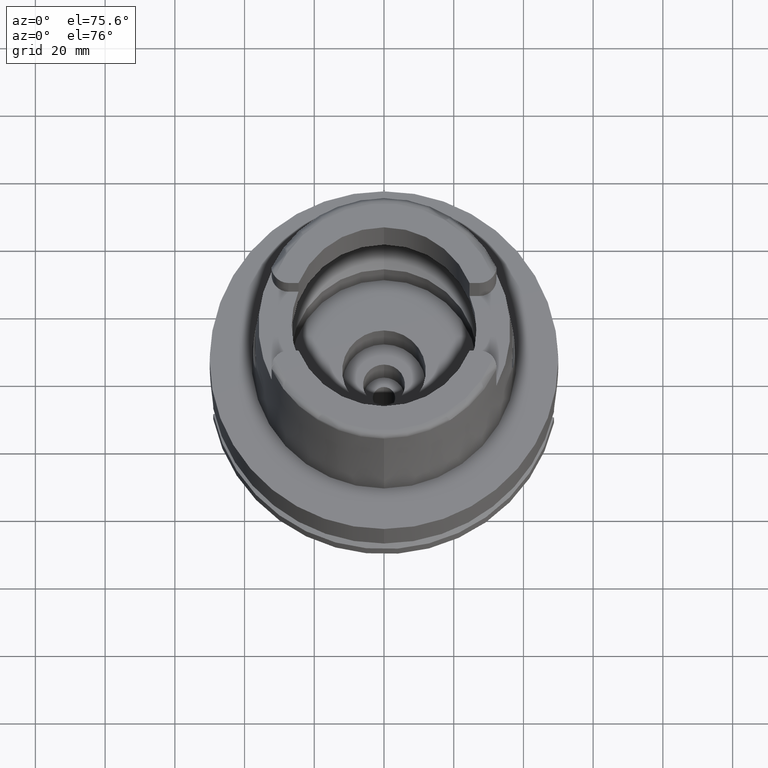
[diagram: clean part render]
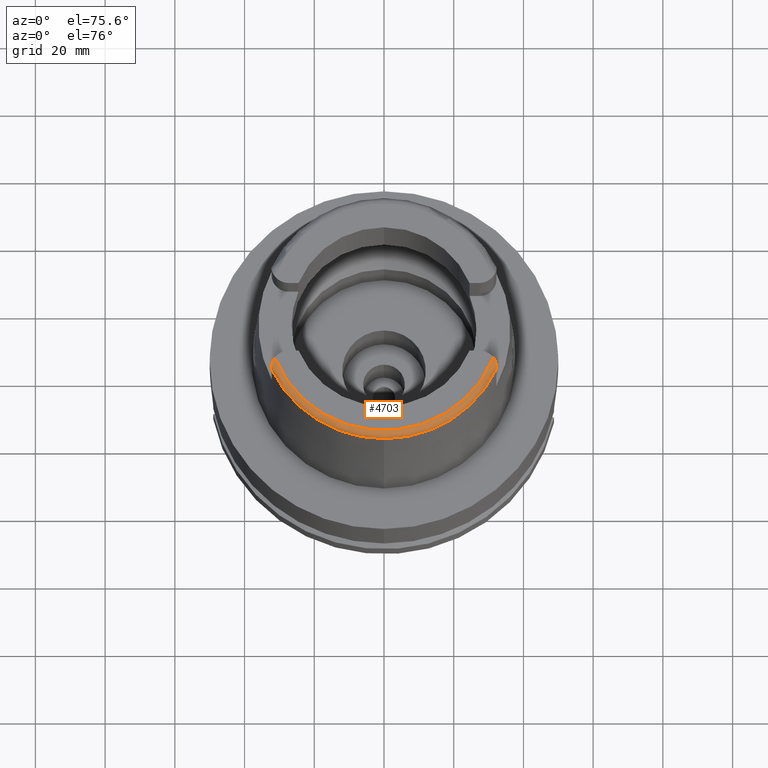
[diagram: same view with one face highlighted and labeled with its STEP entity id]
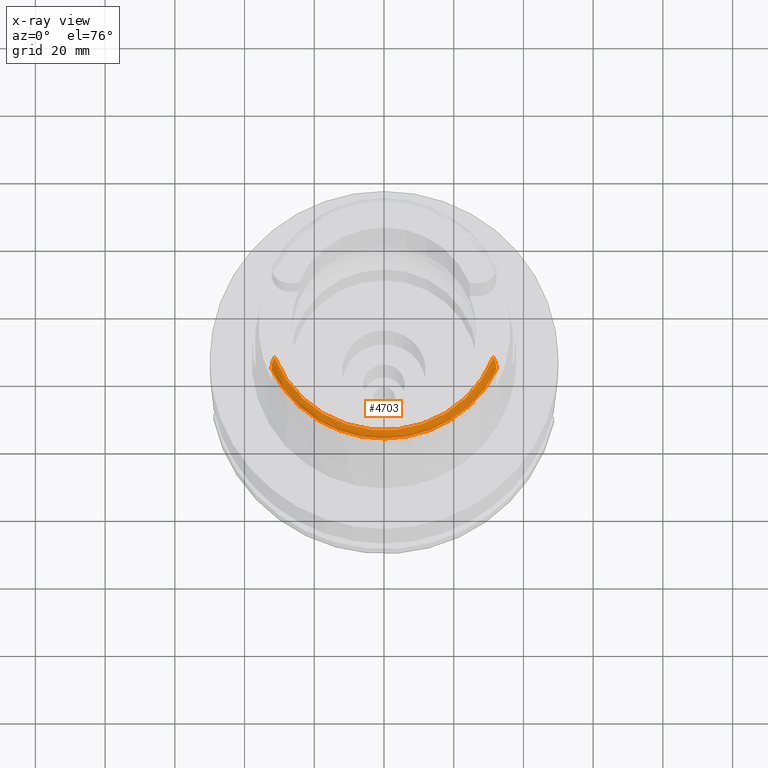
[diagram: x-ray of the same camera — body ghosted, the highlighted face saturated]
A machine part, auxiliary view. The second image highlights one B-rep face of the part: STEP entity #4703.
The next image is the same camera in x-ray: the body ghosted, the highlighted face saturated — about 0% of this face is hidden behind the body in this view.
In plain terms, the highlighted toroidal blend (fillet) surface has major radius 33.5974 mm and minor (blend) radius 2 mm.
Its self-contained STEP definition (entity closure, byte-faithful):
#1 = CARTESIAN_POINT ( 'NONE',  ( -32.12229372940815608, -13.78078003851861588, 49.47012209230408786 ) ) ;
#60 = FACE_OUTER_BOUND ( 'NONE', #5137, .T. ) ;
#74 = CARTESIAN_POINT ( 'NONE',  ( 32.12662134838760153, -13.79952790614440694, 49.45946179748153071 ) ) ;
#117 = CARTESIAN_POINT ( 'NONE',  ( 32.19202011022861853, -14.13997669753728736, 49.24765799081669115 ) ) ;
#121 = ORIENTED_EDGE ( 'NONE', *, *, #161, .F. ) ;
#161 = EDGE_CURVE ( 'NONE', #3127, #2185, #4436, .T. ) ;
#198 = ORIENTED_EDGE ( 'NONE', *, *, #4553, .T. ) ;
#277 = CARTESIAN_POINT ( 'NONE',  ( 31.81684389418833092, -12.87993412136331095, 49.86304614017475956 ) ) ;
#365 = CARTESIAN_POINT ( 'NONE',  ( -32.09774929076863259, -13.67837631100131190, 49.52678221084136112 ) ) ;
#397 = VERTEX_POINT ( 'NONE', #3364 ) ;
#426 = CARTESIAN_POINT ( 'NONE',  ( -31.99727887741356369, -13.33980551114417956, 49.69020498815900311 ) ) ;
#452 = CARTESIAN_POINT ( 'NONE',  ( -32.00287766866619421, -13.35663665331748007, 49.68277174821817965 ) ) ;
#465 = CARTESIAN_POINT ( 'NONE',  ( 32.23208204946383404, -14.47207941814640186, 48.99570727851353524 ) ) ;
#478 = CARTESIAN_POINT ( 'NONE',  ( -31.68001655363202573, -12.57912712960965251, 49.95538788637795591 ) ) ;
#491 = CARTESIAN_POINT ( 'NONE',  ( 32.19280754935339672, -14.14505097819888491, 49.24419245262112810 ) ) ;
#518 = CARTESIAN_POINT ( 'NONE',  ( 32.00551299379910120, -13.36472527706428792, 49.67927593232261074 ) ) ;
#541 = CARTESIAN_POINT ( 'NONE',  ( 32.18535771742216411, -14.09728687932735269, 49.27674078398031554 ) ) ;
#743 = CARTESIAN_POINT ( 'NONE',  ( 0.0000000000000000000, 0.0000000000000000000, 48.09987853799000135 ) ) ;
#810 = CARTESIAN_POINT ( 'NONE',  ( -32.06965892551971820, -13.57192951026770267, 49.58228171760884351 ) ) ;
#851 = CARTESIAN_POINT ( 'NONE',  ( 32.15209308875131455, -13.91626824006528551, 49.39130994416355236 ) ) ;
#912 = ORIENTED_EDGE ( 'NONE', *, *, #3576, .F. ) ;
#926 = ORIENTED_EDGE ( 'NONE', *, *, #1756, .F. ) ;
#940 = CARTESIAN_POINT ( 'NONE',  ( 32.14011498546109635, -13.85987956593858783, 49.42468963867140985 ) ) ;
#971 = CARTESIAN_POINT ( 'NONE',  ( 32.23100776095715503, -14.45980468635681149, 49.00609774884158298 ) ) ;
#1066 = DIRECTION ( 'NONE',  ( -0.0004184165975223878647, -0.9999999124637716230, 0.0000000000000000000 ) ) ;
#1078 = CARTESIAN_POINT ( 'NONE',  ( 32.25000552016999222, -15.06439824941999994, 48.10004203804000156 ) ) ;
#1132 = CARTESIAN_POINT ( 'NONE',  ( -32.25000000000000000, -14.89000000000000057, 48.54599893821999501 ) ) ;
#1187 = CARTESIAN_POINT ( 'NONE',  ( -32.24999491821000674, -15.06448487289000049, 48.09973207079999469 ) ) ;
#1195 = CARTESIAN_POINT ( 'NONE',  ( -32.16815864746564557, -13.99783675310471764, 49.34180364217801440 ) ) ;
#1303 = CARTESIAN_POINT ( 'NONE',  ( 32.25000000000000000, -14.89000000000000057, 48.54599893821999501 ) ) ;
#1319 = CARTESIAN_POINT ( 'NONE',  ( -32.17879946975533301, -14.05736348170453631, 49.30375674593457092 ) ) ;
#1336 = CARTESIAN_POINT ( 'NONE',  ( 31.99366224306702478, -13.32922343566730916, 49.69487437179982692 ) ) ;
#1383 = CARTESIAN_POINT ( 'NONE',  ( 32.24999999999800337, -14.84155460175353980, 48.61755987392520240 ) ) ;
#1627 = CARTESIAN_POINT ( 'NONE',  ( 0.0000000000000000000, 0.0000000000000000000, 50.00000000000000000 ) ) ;
#1659 = AXIS2_PLACEMENT_3D ( 'NONE', #1627, #3826, #4275 ) ;
#1661 = CARTESIAN_POINT ( 'NONE',  ( -31.35385269249000473, -12.07161079256999869, 50.00000000000000000 ) ) ;
#1698 = CARTESIAN_POINT ( 'NONE',  ( -32.24275142256352211, -14.62070293131212928, 48.86190762778266361 ) ) ;
#1722 = CARTESIAN_POINT ( 'NONE',  ( -31.87831145123955778, -13.01516083688641601, 49.82155154551189469 ) ) ;
#1735 = CARTESIAN_POINT ( 'NONE',  ( 31.99753673899820328, -13.34074168308432284, 49.68984359122930528 ) ) ;
#1756 = EDGE_CURVE ( 'NONE', #2061, #3294, #5486, .T. ) ;
#1767 = CARTESIAN_POINT ( 'NONE',  ( 32.19396513231324519, -14.15258164565870658, 49.23902787188876573 ) ) ;
#1937 = CARTESIAN_POINT ( 'NONE',  ( 32.25000000000000000, -15.04642709874755369, 48.25215151457929608 ) ) ;
#2010 = CARTESIAN_POINT ( 'NONE',  ( -32.25000000000000000, -14.98833473108818559, 48.40074416431184545 ) ) ;
#2034 = AXIS2_PLACEMENT_3D ( 'NONE', #4906, #3256, #1066 ) ;
#2061 = VERTEX_POINT ( 'NONE', #1187 ) ;
#2081 = CARTESIAN_POINT ( 'NONE',  ( -32.11892025976811027, -13.76639677872012513, 49.47817105267167648 ) ) ;
#2154 = CARTESIAN_POINT ( 'NONE',  ( 32.07060842310556836, -13.57720720462327080, 49.57919722607995539 ) ) ;
#2184 = CARTESIAN_POINT ( 'NONE',  ( 32.19567986254341463, -14.16382289898905000, 49.23129284797479244 ) ) ;
#2185 = VERTEX_POINT ( 'NONE', #2686 ) ;
#2307 = B_SPLINE_CURVE_WITH_KNOTS ( 'NONE', 3,
 ( #3885, #2587, #4213, #4306, #1698, #3004, #4695, #5189, #5503, #3338, #4669, #1319, #1195, #2522, #3860, #4332, #1, #2081, #365, #810, #3794, #5131, #452, #426, #5533, #1722, #478, #2550, #1661 ),
 .UNSPECIFIED., .F., .F.,
 ( 4, 2, 2, 2, 2, 2, 2, 1, 2, 2, 1, 1, 2, 2, 2, 4 ),
 ( 0.0000000000000000000, 0.1249999999999968914, 0.1874999999999917566, 0.2187499999999910349, 0.2499999999999903133, 0.3749999999999883427, 0.4374999999999873435, 0.4687499999999885092, 0.4843749999999891198, 0.4999999999999896749, 0.5624999999999895639, 0.5937499999999890088, 0.6093749999999898970, 0.6249999999999908962, 0.7499999999999931166, 1.000000000000000000 ),
 .UNSPECIFIED. ) ;
#2351 = CARTESIAN_POINT ( 'NONE',  ( 32.25000000000000000, -14.98829434894088841, 48.40080381463928916 ) ) ;
#2414 = CARTESIAN_POINT ( 'NONE',  ( 31.93157314441074490, -13.15426308807855982, 49.76784703235563967 ) ) ;
#2442 = CARTESIAN_POINT ( 'NONE',  ( 31.99075558007217523, -13.32063726226458300, 49.69860649228969862 ) ) ;
#2492 = DIRECTION ( 'NONE',  ( 0.9060280460804950309, -0.4232176505245974218, 0.0000000000000000000 ) ) ;
#2522 = CARTESIAN_POINT ( 'NONE',  ( -32.14990311135723289, -13.90618260719910459, 49.39756728450471002 ) ) ;
#2550 = CARTESIAN_POINT ( 'NONE',  ( -31.52434729023032034, -12.31260850874100754, 49.99999999999997868 ) ) ;
#2555 = AXIS2_PLACEMENT_3D ( 'NONE', #743, #4663, #2492 ) ;
#2572 = CARTESIAN_POINT ( 'NONE',  ( 32.12173543142808541, -13.77845985571048359, 49.47135052064854221 ) ) ;
#2587 = CARTESIAN_POINT ( 'NONE',  ( -32.25000000000001421, -14.83675257125975122, 48.62465317499305684 ) ) ;
#2621 = CARTESIAN_POINT ( 'NONE',  ( 32.23037231632524424, -14.45270608418183400, 49.01205641927548129 ) ) ;
#2652 = CARTESIAN_POINT ( 'NONE',  ( 32.13371093479985774, -13.83055782225706132, 49.44179912891517148 ) ) ;
#2686 = CARTESIAN_POINT ( 'NONE',  ( 32.25000552016999222, -15.06439824941999994, 48.10004203804000156 ) ) ;
#2723 = B_SPLINE_CURVE_WITH_KNOTS ( 'NONE', 3,
 ( #1303, #1383, #4345, #3509, #4400, #3106, #5144, #5210, #465, #971, #2621, #3969, #4801, #3446, #3025, #5233, #2184, #1767, #491, #117, #541, #5174, #4716, #851, #940, #2652, #74, #2572, #3898, #3481, #2154, #4293, #3076, #3871, #518, #1735, #1336, #3050, #4776, #2442, #3600, #2414, #4156, #3706, #4561, #4423, #277, #2859, #2831, #4019 ),
 .UNSPECIFIED., .F., .F.,
 ( 4, 2, 2, 1, 1, 2, 2, 2, 1, 1, 1, 2, 2, 2, 2, 1, 2, 2, 2, 2, 1, 1, 1, 2, 2, 2, 1, 2, 2, 4 ),
 ( 0.0000000000000000000, 0.1250000000000812683, 0.1875000000001225964, 0.2187500000001437461, 0.2343750000001541267, 0.2421875000001615375, 0.2500000000001689204, 0.3125000000002099987, 0.3437500000002325362, 0.3593750000002459144, 0.3671875000002518541, 0.3710937500002551293, 0.3750000000002584599, 0.4375000000002740030, 0.4687500000002822187, 0.4843750000002850498, 0.4921875000002853273, 0.5000000000002856604, 0.5625000000003066436, 0.5937500000003165246, 0.6093750000003195222, 0.6171875000003208545, 0.6210937500003211875, 0.6230468750003202993, 0.6250000000003193001, 0.6875000000002639000, 0.7187500000002373657, 0.7343750000002240430, 0.7500000000002108314, 1.000000000000000000 ),
 .UNSPECIFIED. ) ;
#2752 = DIRECTION ( 'NONE',  ( 0.0000000000000000000, 0.0000000000000000000, -1.000000000000000000 ) ) ;
#2763 = EDGE_CURVE ( 'NONE', #3294, #3769, #2307, .T. ) ;
#2803 = EDGE_CURVE ( 'NONE', #2962, #3769, #2809, .T. ) ;
#2809 = CIRCLE ( 'NONE', #1659, 33.59743838135999994 ) ;
#2831 = CARTESIAN_POINT ( 'NONE',  ( 31.51411580198172757, -12.29814608391269637, 49.99999999999938183 ) ) ;
#2859 = CARTESIAN_POINT ( 'NONE',  ( 31.67207081944090064, -12.56310856041883461, 49.95952297728763369 ) ) ;
#2962 = VERTEX_POINT ( 'NONE', #3940 ) ;
#3004 = CARTESIAN_POINT ( 'NONE',  ( -32.23865244506210104, -14.55671303128456628, 48.92145190927836751 ) ) ;
#3008 = CIRCLE ( 'NONE', #5084, 35.59494289391000166 ) ;
#3025 = CARTESIAN_POINT ( 'NONE',  ( 32.20665938092110281, -14.23983897299223322, 49.17777059152017927 ) ) ;
#3030 = CARTESIAN_POINT ( 'NONE',  ( -32.25000000000000000, -14.89000000000000057, 48.54599893821999501 ) ) ;
#3050 = CARTESIAN_POINT ( 'NONE',  ( 31.99202670985004104, -13.32438867603719679, 49.69697700939573082 ) ) ;
#3076 = CARTESIAN_POINT ( 'NONE',  ( 32.02756317826372623, -13.43339430829624348, 49.64815145102337368 ) ) ;
#3105 = TOROIDAL_SURFACE ( 'NONE', #2034, 33.59743838135999994, 2.000000000000000000 ) ;
#3106 = CARTESIAN_POINT ( 'NONE',  ( 32.23933087871721881, -14.56554199802243588, 48.91314387321655488 ) ) ;
#3127 = VERTEX_POINT ( 'NONE', #3726 ) ;
#3256 = DIRECTION ( 'NONE',  ( 0.0000000000000000000, 0.0000000000000000000, 1.000000000000000000 ) ) ;
#3270 = CARTESIAN_POINT ( 'NONE',  ( 32.25000000000000000, -14.89000000000000057, 48.54599893821999501 ) ) ;
#3289 = EDGE_CURVE ( 'NONE', #2185, #397, #5364, .T. ) ;
#3294 = VERTEX_POINT ( 'NONE', #3030 ) ;
#3338 = CARTESIAN_POINT ( 'NONE',  ( -32.22000162718876481, -14.34010184720649939, 49.10568205248652873 ) ) ;
#3364 = CARTESIAN_POINT ( 'NONE',  ( 1.065814103639999922E-14, -35.59494289391000166, 48.09987853799000135 ) ) ;
#3405 = ORIENTED_EDGE ( 'NONE', *, *, #2803, .T. ) ;
#3446 = CARTESIAN_POINT ( 'NONE',  ( 32.21184819779601582, -14.28024553250990891, 49.14799236218206602 ) ) ;
#3481 = CARTESIAN_POINT ( 'NONE',  ( 32.09390960063630871, -13.66174484513194010, 49.53612439572665949 ) ) ;
#3509 = CARTESIAN_POINT ( 'NONE',  ( 32.24537443096510714, -14.67049314219866929, 48.81176789478189448 ) ) ;
#3576 = EDGE_CURVE ( 'NONE', #397, #2061, #3008, .T. ) ;
#3600 = CARTESIAN_POINT ( 'NONE',  ( 31.96138892487233818, -13.23431526731116392, 49.73599043424963639 ) ) ;
#3706 = CARTESIAN_POINT ( 'NONE',  ( 31.86278337548557715, -12.98430425436227509, 49.82935833776497248 ) ) ;
#3726 = CARTESIAN_POINT ( 'NONE',  ( 32.25000000000000000, -14.89000000000000057, 48.54599893821999501 ) ) ;
#3743 = CARTESIAN_POINT ( 'NONE',  ( 0.0000000000000000000, 0.0000000000000000000, 48.09987853799000135 ) ) ;
#3769 = VERTEX_POINT ( 'NONE', #4279 ) ;
#3794 = CARTESIAN_POINT ( 'NONE',  ( -32.03191147310320730, -13.44657869226373492, 49.64207184685769647 ) ) ;
#3826 = DIRECTION ( 'NONE',  ( 0.0000000000000000000, 0.0000000000000000000, -1.000000000000000000 ) ) ;
#3860 = CARTESIAN_POINT ( 'NONE',  ( -32.14020157422638846, -13.85976491403374489, 49.42512243015844575 ) ) ;
#3871 = CARTESIAN_POINT ( 'NONE',  ( 32.01271917445313164, -13.38690105831094890, 49.66932380917522494 ) ) ;
#3885 = CARTESIAN_POINT ( 'NONE',  ( -32.25000000000000000, -14.89000000000000057, 48.54599893821999501 ) ) ;
#3898 = CARTESIAN_POINT ( 'NONE',  ( 32.11944377658730332, -13.76870297029990375, 49.47681503565376460 ) ) ;
#3940 = CARTESIAN_POINT ( 'NONE',  ( 31.35385269249000473, -12.07161079256999869, 50.00000000000000000 ) ) ;
#3969 = CARTESIAN_POINT ( 'NONE',  ( 32.22600034157537863, -14.40471007227728073, 49.05208271396524111 ) ) ;
#4019 = CARTESIAN_POINT ( 'NONE',  ( 31.35385269249000473, -12.07161079256999869, 50.00000000000000000 ) ) ;
#4156 = CARTESIAN_POINT ( 'NONE',  ( 31.88587749860922216, -13.03999068766329650, 49.80982206058237693 ) ) ;
#4213 = CARTESIAN_POINT ( 'NONE',  ( -32.24916374122202711, -14.77274772632445909, 48.70355345795095303 ) ) ;
#4275 = DIRECTION ( 'NONE',  ( 0.9332215253017949186, -0.3593015233941980191, 0.0000000000000000000 ) ) ;
#4279 = CARTESIAN_POINT ( 'NONE',  ( -31.35385269249000473, -12.07161079256999869, 50.00000000000000000 ) ) ;
#4293 = CARTESIAN_POINT ( 'NONE',  ( 32.03803766908200146, -13.46724650593997019, 49.63234726151438991 ) ) ;
#4306 = CARTESIAN_POINT ( 'NONE',  ( -32.24475390064397118, -14.66071603743208307, 48.82227295166506309 ) ) ;
#4332 = CARTESIAN_POINT ( 'NONE',  ( -32.12958296483420639, -13.81248683795466192, 49.45218756254777048 ) ) ;
#4345 = CARTESIAN_POINT ( 'NONE',  ( 32.24950179817208351, -14.78085714767337677, 48.69339929448019433 ) ) ;
#4400 = CARTESIAN_POINT ( 'NONE',  ( 32.24343296302174622, -14.63048616398008583, 48.85198431475623693 ) ) ;
#4423 = CARTESIAN_POINT ( 'NONE',  ( 31.82392407693638958, -12.89569372424123372, 49.85811637563201515 ) ) ;
#4436 = B_SPLINE_CURVE_WITH_KNOTS ( 'NONE', 3,
 ( #3270, #2351, #1937, #1078 ),
 .UNSPECIFIED., .F., .F.,
 ( 4, 4 ),
 ( 0.0000000000000000000, 1.000000000000000000 ),
 .UNSPECIFIED. ) ;
#4487 = CARTESIAN_POINT ( 'NONE',  ( -32.24999491821000674, -15.06448487289000049, 48.09973207079999469 ) ) ;
#4553 = EDGE_CURVE ( 'NONE', #3127, #2962, #2723, .T. ) ;
#4561 = CARTESIAN_POINT ( 'NONE',  ( 31.83948514353172143, -12.93083917502448443, 49.84687231385708372 ) ) ;
#4588 = ORIENTED_EDGE ( 'NONE', *, *, #2763, .F. ) ;
#4663 = DIRECTION ( 'NONE',  ( 0.0000000000000000000, 0.0000000000000000000, -1.000000000000000000 ) ) ;
#4669 = CARTESIAN_POINT ( 'NONE',  ( -32.20671793200003208, -14.23098308523779032, 49.18700265312727993 ) ) ;
#4695 = CARTESIAN_POINT ( 'NONE',  ( -32.23710317156184857, -14.53472152608259194, 48.94131538099682643 ) ) ;
#4703 = ADVANCED_FACE ( 'NONE', ( #60 ), #3105, .T. ) ;
#4716 = CARTESIAN_POINT ( 'NONE',  ( 32.15897312250093876, -13.95085435417365716, 49.37017906690769564 ) ) ;
#4776 = CARTESIAN_POINT ( 'NONE',  ( 31.99094196855187278, -13.32118810468113601, 49.69836698741684700 ) ) ;
#4801 = CARTESIAN_POINT ( 'NONE',  ( 32.22117719699783578, -14.35765073956841853, 49.08955081376749519 ) ) ;
#4906 = CARTESIAN_POINT ( 'NONE',  ( 0.0000000000000000000, 0.0000000000000000000, 48.00000000000000000 ) ) ;
#4920 = CARTESIAN_POINT ( 'NONE',  ( -32.25000000000000000, -15.04649635538485342, 48.25198854183850727 ) ) ;
#5084 = AXIS2_PLACEMENT_3D ( 'NONE', #3743, #2752, #5395 ) ;
#5131 = CARTESIAN_POINT ( 'NONE',  ( -32.01463907649490181, -13.39264015852173628, 49.66663348182580506 ) ) ;
#5137 = EDGE_LOOP ( 'NONE', ( #912, #5240, #121, #198, #3405, #4588, #926 ) ) ;
#5144 = CARTESIAN_POINT ( 'NONE',  ( 32.23698231014468973, -14.53183666927565731, 48.94393150004460580 ) ) ;
#5174 = CARTESIAN_POINT ( 'NONE',  ( 32.17693114827569900, -14.04577754051331873, 49.31084457775487806 ) ) ;
#5189 = CARTESIAN_POINT ( 'NONE',  ( -32.23358452331498114, -14.48942333913791991, 48.98107308020683348 ) ) ;
#5210 = CARTESIAN_POINT ( 'NONE',  ( 32.23364699021658453, -14.49033486437665452, 48.98013764433955686 ) ) ;
#5233 = CARTESIAN_POINT ( 'NONE',  ( 32.19953185619332459, -14.18966991231288155, 49.21333025010093110 ) ) ;
#5240 = ORIENTED_EDGE ( 'NONE', *, *, #3289, .F. ) ;
#5364 = CIRCLE ( 'NONE', #2555, 35.59494289391000166 ) ;
#5395 = DIRECTION ( 'NONE',  ( 0.0000000000000000000, -1.000000000000000000, 0.0000000000000000000 ) ) ;
#5486 = B_SPLINE_CURVE_WITH_KNOTS ( 'NONE', 3,
 ( #4487, #4920, #2010, #1132 ),
 .UNSPECIFIED., .F., .F.,
 ( 4, 4 ),
 ( 0.0000000000000000000, 1.000000000000000000 ),
 .UNSPECIFIED. ) ;
#5503 = CARTESIAN_POINT ( 'NONE',  ( -32.23175840207754561, -14.46767107017807419, 48.99967562822400424 ) ) ;
#5533 = CARTESIAN_POINT ( 'NONE',  ( -31.93847373582904581, -13.16667050922206883, 49.76536210780749059 ) ) ;